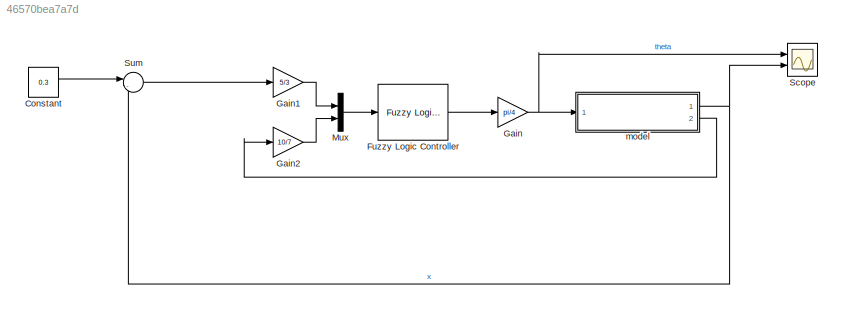
MODEL slx_46570bea7a7d
KIND model
CONFIG AbsTol = auto
CONFIG EnableMultiTasking = off
CONFIG FixedStep = 0.01
CONFIG MaxStep = auto
CONFIG MinStep = auto
CONFIG RelTol = 1e-3
CONFIG SampleTimeConstraint = Unconstrained
CONFIG SolverName = ode4
CONFIG StartTime = 0.0
CONFIG StopTime = 10.0
BLOCK [Constant] Constant
  Value = 0.3
BLOCK [Reference] Fuzzy Logic Controller  REF=fuzblock/Fuzzy Logic   (lib defined in mdl_858b3b3e7478)
Controller
  Ports = [1, 1]
  SourceBlock = fuzblock/Fuzzy Logic \nController
  SourceProductBaseCode = FL
  SourceType = Fuzzy Inference System
BLOCK [Gain] Gain
  Gain = pi/4
BLOCK [Gain] Gain1
  Gain = 5/3
BLOCK [Gain] Gain2
  Gain = 10/7
BLOCK [Mux] Mux
  DisplayOption = bar
  Inputs = 2
  Ports = [2, 1]
BLOCK [Scope] Scope
  Floating = off
  NumInputPorts = 2
  Ports = [2]
  ScopeSpecificationString = Simulink.scopes.TimeScopeBlockCfg('CurrentConfiguration', extmgr.ConfigurationSet(extmgr.Configuration('Core','General UI',true,'FigureColor',[1 1 1]),extmgr.Configuration('Core','Source UI',true),extmgr.Configuration('Sources','WiredSimulink',true),extmgr.Configuration('Visuals','Time Domain',true,'SerializedDisplays',{struct('MinYLimReal','-0.69836','MaxYLimReal','0.68846','YLabelReal','','MinYL...<+2992ch>
BLOCK [Sum] Sum
  Inputs = |-+
  Ports = [2, 1]
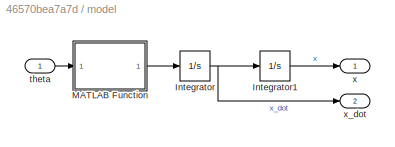
BLOCK [SubSystem] model
  Ports = [1, 2]
  RequestExecContextInheritance = off
BLOCK [Integrator] model/Integrator
  Ports = [1, 1]
BLOCK [Integrator] model/Integrator1
  InitialCondition = x0
  Ports = [1, 1]
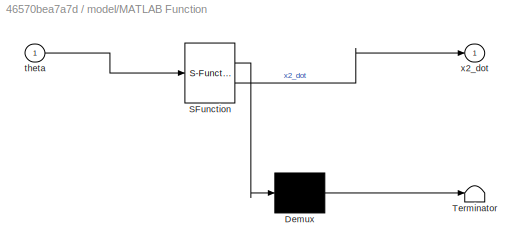
BLOCK [SubSystem] model/MATLAB Function
  ErrorFcn = Stateflow.Translate.translate
  PermitHierarchicalResolution = ExplicitOnly
  Ports = [1, 1]
  RequestExecContextInheritance = off
  SFBlockType = MATLAB Function
  TreatAsAtomicUnit = on
BLOCK [Demux] model/MATLAB Function/ Demux 
  Outputs = 1
  Ports = [1, 1]
BLOCK [S-Function] model/MATLAB Function/ SFunction 
  EnableBusSupport = on
  FunctionName = sf_sfun
  PortCounts = [1 2]
  Ports = [1, 2]
  SFcnIsStateOwnerBlock = off
  SFunctionDeploymentMode = off
  Tag = Stateflow S-Function 2
BLOCK [Terminator] model/MATLAB Function/ Terminator 
BLOCK [Inport] model/MATLAB Function/theta
BLOCK [Outport] model/MATLAB Function/x2_dot
BLOCK [Inport] model/theta
BLOCK [Outport] model/x
BLOCK [Outport] model/x_dot
  Port = 2
LINE Constant:1 -> Sum:1
LINE Fuzzy Logic Controller:1 -> Gain:1
LINE Gain1:1 -> Mux:1
LINE Gain2:1 -> Mux:2
NET Gain:1 -> Scope:1, model:1
LINE Mux:1 -> Fuzzy Logic Controller:1
LINE Sum:1 -> Gain1:1
LINE model/Integrator1:1 -> model/x:1
NET model/Integrator:1 -> model/Integrator1:1, model/x_dot:1
LINE model/MATLAB Function:1 -> model/Integrator:1
LINE model/theta:1 -> model/MATLAB Function:1
NET model:1 -> Scope:2, Sum:2
LINE model:2 -> Gain2:1
note: NET lines group one-source signal fan-out (src -> all destinations, sorted); 1:1 wires keep LINE
CHART model/MATLAB Function states=1 transitions=1
  STATE_LABEL 'eML_blk_kernel()'
  STATE_LABEL 'SCRIPT:\nfunction x2_dot = fcn(theta)\n%% model parameters\nm = 1;\nJ = 3.3e-5;\nR = 5e-3;\ng =9.81;\n%%\n\nx2_dot = (m*g*sin(theta))/((J/R^2)+m);\n'
CHART  states=0 transitions=0
